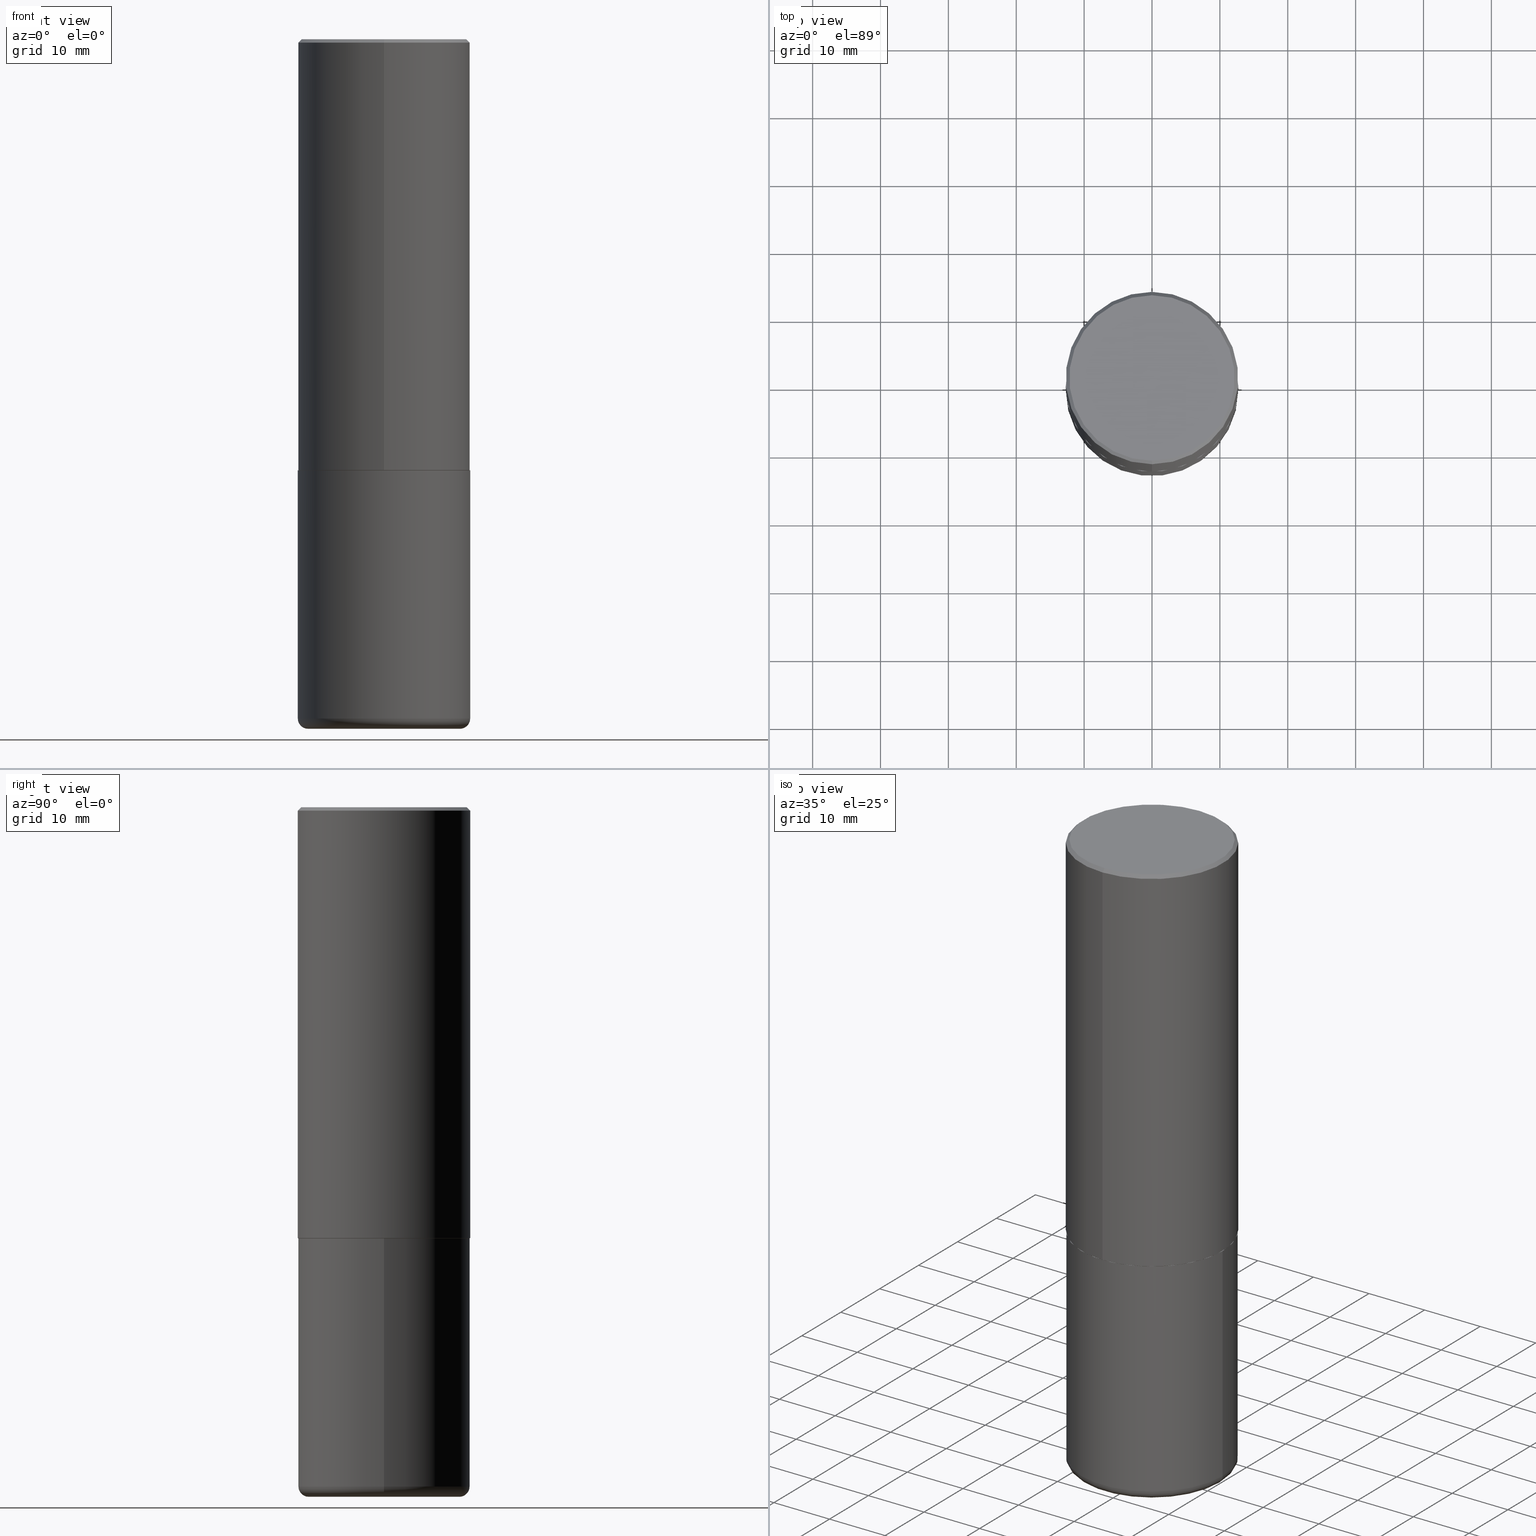
[diagram: canonical four-view strip — front | top / right | iso, engineering-drawing reading convention]
A machine part, canonical four-view strip (front | top / right | iso — engineering-drawing reading convention). The complete STEP part file that produces these views, byte-faithful:
ISO-10303-21;
HEADER;
FILE_DESCRIPTION (( 'STEP AP203' ),
    '1' );
FILE_NAME ('37220.STEP',
    '2024-03-01T22:10:00',
    ( '' ),
    ( '' ),
    'SwSTEP 2.0',
    'SolidWorks 2023',
    '' );
FILE_SCHEMA (( 'CONFIG_CONTROL_DESIGN' ));
ENDSEC;

DATA;
#1 = ORIENTED_EDGE ( 'NONE', *, *, #38, .T. ) ;
#2 = CONICAL_SURFACE ( 'NONE', #337, 0.5000000000000000000, 0.7853981633974449483 ) ;
#3 = ORIENTED_EDGE ( 'NONE', *, *, #324, .T. ) ;
#4 = AXIS2_PLACEMENT_3D ( 'NONE', #144, #272, #202 ) ;
#5 = ORIENTED_EDGE ( 'NONE', *, *, #242, .F. ) ;
#6 = EDGE_CURVE ( 'NONE', #294, #332, #207, .T. ) ;
#7 = ORIENTED_EDGE ( 'NONE', *, *, #141, .F. ) ;
#8 = ADVANCED_FACE ( 'NONE', ( #15 ), #296, .F. ) ;
#9 = AXIS2_PLACEMENT_3D ( 'NONE', #307, #410, #23 ) ;
#10 = CARTESIAN_POINT ( 'NONE',  ( 0.000000000000000000, 0.000000000000000000, 0.000000000000000000 ) ) ;
#11 = ADVANCED_FACE ( 'NONE', ( #204 ), #181, .T. ) ;
#12 = CARTESIAN_POINT ( 'NONE',  ( 0.000000000000000000, 0.000000000000000000, 0.000000000000000000 ) ) ;
#13 = CIRCLE ( 'NONE', #357, 0.5000000000000002220 ) ;
#14 = DIRECTION ( 'NONE',  ( -6.982962677686265922E-15, -1.000000000000000000, 3.492229786509738161E-15 ) ) ;
#15 = FACE_OUTER_BOUND ( 'NONE', #321, .T. ) ;
#16 = CARTESIAN_POINT ( 'NONE',  ( -5.540013713897219376E-45, 7.913058030796886371E-31, 2.265904168552862416E-16 ) ) ;
#17 = DIRECTION ( 'NONE',  ( 1.000000000000000000, -6.982962677686268288E-15, 4.883557194083113462E-29 ) ) ;
#18 = CC_DESIGN_SECURITY_CLASSIFICATION ( #297, ( #195 ) ) ;
#19 = EDGE_CURVE ( 'NONE', #360, #102, #182, .T. ) ;
#20 = AXIS2_PLACEMENT_3D ( 'NONE', #266, #238, #41 ) ;
#21 = CARTESIAN_POINT ( 'NONE',  ( -3.484498376165385415E-15, -0.4990000000000087144, -2.499999999999998668 ) ) ;
#22 = FACE_OUTER_BOUND ( 'NONE', #198, .T. ) ;
#23 = DIRECTION ( 'NONE',  ( 1.000000000000000000, -6.982962677686266711E-15, 0.000000000000000000 ) ) ;
#24 = LINE ( 'NONE', #312, #333 ) ;
#25 = DIRECTION ( 'NONE',  ( -1.000000000000000000, 6.982962677686265922E-15, -4.876176775795935793E-29 ) ) ;
#26 = APPROVAL_STATUS ( 'not_yet_approved' ) ;
#27 = ORIENTED_EDGE ( 'NONE', *, *, #60, .T. ) ;
#28 = DIMENSIONAL_EXPONENTS ( 1.000000000000000000, 0.000000000000000000, 0.000000000000000000, 0.000000000000000000, 0.000000000000000000, 0.000000000000000000, 0.000000000000000000 ) ;
#29 = CALENDAR_DATE ( 2024, 1, 3 ) ;
#30 = SHAPE_DEFINITION_REPRESENTATION ( #310, #227 ) ;
#31 = CC_DESIGN_PERSON_AND_ORGANIZATION_ASSIGNMENT ( #353, #359, ( #319 ) ) ;
#32 = APPROVAL_PERSON_ORGANIZATION ( #193, #50, #322 ) ;
#33 = EDGE_LOOP ( 'NONE', ( #165, #69, #415, #327 ) ) ;
#34 = AXIS2_PLACEMENT_3D ( 'NONE', #399, #234, #17 ) ;
#35 = ORIENTED_EDGE ( 'NONE', *, *, #19, .F. ) ;
#36 = ORIENTED_EDGE ( 'NONE', *, *, #286, .F. ) ;
#37 = AXIS2_PLACEMENT_3D ( 'NONE', #375, #300, #341 ) ;
#38 = EDGE_CURVE ( 'NONE', #162, #201, #95, .T. ) ;
#39 = EDGE_LOOP ( 'NONE', ( #101, #3, #7, #290 ) ) ;
#40 = VERTEX_POINT ( 'NONE', #176 ) ;
#41 = DIRECTION ( 'NONE',  ( 6.982962677686265922E-15, 1.000000000000000000, -3.492229786509738161E-15 ) ) ;
#42 = LINE ( 'NONE', #21, #136 ) ;
#43 = VECTOR ( 'NONE', #143, 39.37007874015748143 ) ;
#44 = DIRECTION ( 'NONE',  ( -2.444946167972934928E-29, 3.492229786509738161E-15, 1.000000000000000000 ) ) ;
#45 = DIRECTION ( 'NONE',  ( 6.982962677686265922E-15, 1.000000000000000000, -3.491643216902136408E-15 ) ) ;
#46 = DIRECTION ( 'NONE',  ( 1.000000000000000000, -6.982962677686266711E-15, 4.876176775795935793E-29 ) ) ;
#47 = DIRECTION ( 'NONE',  ( -6.982962677686265922E-15, -1.000000000000000000, 3.492229786509738161E-15 ) ) ;
#48 = PLANE ( 'NONE',  #20 ) ;
#49 = DIRECTION ( 'NONE',  ( -4.937700262165728178E-15, -0.7071067811867141062, 0.7071067811863809283 ) ) ;
#50 = APPROVAL ( #92, 'UNSPECIFIED' ) ;
#51 = DIRECTION ( 'NONE',  ( -6.982962677686265922E-15, -1.000000000000000000, 3.284787166730577015E-15 ) ) ;
#52 = DIRECTION ( 'NONE',  ( -2.445468806185136597E-29, 3.491481338843145583E-15, 1.000000000000000000 ) ) ;
#53 = DIRECTION ( 'NONE',  ( -1.000000000000000000, 6.982962677686265922E-15, -4.876176775795935793E-29 ) ) ;
#54 = DATE_TIME_ROLE ( 'classification_date' ) ;
#55 = CARTESIAN_POINT ( 'NONE',  ( 3.491481338843133355E-15, 0.4999999999999999445, -0.02000000000000185310 ) ) ;
#56 = PERSON_AND_ORGANIZATION ( #127, #279 ) ;
#57 = CC_DESIGN_APPROVAL ( #50, ( #124 ) ) ;
#58 = COORDINATED_UNIVERSAL_TIME_OFFSET ( 5, 0, .BEHIND. ) ;
#59 = APPROVAL_ROLE ( '' ) ;
#60 = EDGE_CURVE ( 'NONE', #231, #166, #145, .T. ) ;
#61 = DIRECTION ( 'NONE',  ( 0.000000000000000000, 0.000000000000000000, 1.000000000000000000 ) ) ;
#62 = ADVANCED_FACE ( 'NONE', ( #22 ), #48, .F. ) ;
#63 = EDGE_LOOP ( 'NONE', ( #27, #192, #168, #323 ) ) ;
#64 = VERTEX_POINT ( 'NONE', #268 ) ;
#65 = CIRCLE ( 'NONE', #66, 0.5000000000000000000 ) ;
#66 = AXIS2_PLACEMENT_3D ( 'NONE', #303, #44, #104 ) ;
#67 = ORIENTED_EDGE ( 'NONE', *, *, #6, .F. ) ;
#68 = EDGE_CURVE ( 'NONE', #261, #64, #148, .T. ) ;
#69 = ORIENTED_EDGE ( 'NONE', *, *, #222, .T. ) ;
#70 = AXIS2_PLACEMENT_3D ( 'NONE', #271, #184, #408 ) ;
#71 = ORIENTED_EDGE ( 'NONE', *, *, #80, .T. ) ;
#72 = CARTESIAN_POINT ( 'NONE',  ( 0.5000000000000000000, -1.222018468595099830E-14, -2.500000000000000000 ) ) ;
#73 = DIRECTION ( 'NONE',  ( 2.444946167972934928E-29, -3.492229786509738161E-15, -1.000000000000000000 ) ) ;
#74 = CARTESIAN_POINT ( 'NONE',  ( 3.552713678800533273E-15, 0.4999999999999916178, -2.499000000000001886 ) ) ;
#75 = DIRECTION ( 'NONE',  ( 2.444946167972934928E-29, -3.492229786509738161E-15, -1.000000000000000000 ) ) ;
#76 = APPROVAL_PERSON_ORGANIZATION ( #218, #340, #59 ) ;
#77 = DIRECTION ( 'NONE',  ( -2.444946167972934928E-29, 3.492229786509738161E-15, 1.000000000000000000 ) ) ;
#78 = DIRECTION ( 'NONE',  ( -2.444946167972934928E-29, 3.492229786509738161E-15, 1.000000000000000000 ) ) ;
#79 = DIRECTION ( 'NONE',  ( -4.851104656540947709E-15, -0.7071067811865475727, -0.7071067811865474617 ) ) ;
#80 = EDGE_CURVE ( 'NONE', #228, #64, #347, .T. ) ;
#81 = CARTESIAN_POINT ( 'NONE',  ( 0.5000000000000000000, -3.491481338843133355E-15, 2.438088387897967896E-29 ) ) ;
#82 = CARTESIAN_POINT ( 'NONE',  ( 3.549160965121762351E-15, 0.4989999999999912283, -2.500000000000001776 ) ) ;
#83 = FACE_OUTER_BOUND ( 'NONE', #123, .T. ) ;
#84 = EDGE_CURVE ( 'NONE', #201, #162, #398, .T. ) ;
#85 = DIRECTION ( 'NONE',  ( -2.445468806185136597E-29, 3.491481338843145583E-15, 1.000000000000000000 ) ) ;
#86 = CIRCLE ( 'NONE', #239, 0.4799999999999998157 ) ;
#87 = AXIS2_PLACEMENT_3D ( 'NONE', #177, #344, #299 ) ;
#88 = DATE_AND_TIME ( #29, #160 ) ;
#89 = CARTESIAN_POINT ( 'NONE',  ( 6.113672015462842613E-29, -8.728703347107864943E-15, -2.500000000000000000 ) ) ;
#90 = EDGE_CURVE ( 'NONE', #64, #228, #65, .T. ) ;
#91 = VECTOR ( 'NONE', #351, 39.37007874015748143 ) ;
#92 = APPROVAL_STATUS ( 'not_yet_approved' ) ;
#93 = DIRECTION ( 'NONE',  ( -6.982962677686266711E-15, -1.000000000000000000, 3.491481338843145583E-15 ) ) ;
#94 = LOCAL_TIME ( 17, 10, 0.000000000000000000, #283 ) ;
#95 = CIRCLE ( 'NONE', #330, 0.4989999999999999991 ) ;
#96 = DIRECTION ( 'NONE',  ( 1.000000000000000000, 0.000000000000000000, 0.000000000000000000 ) ) ;
#97 = AXIS2_PLACEMENT_3D ( 'NONE', #383, #93, #348 ) ;
#98 = ADVANCED_FACE ( 'NONE', ( #403 ), #325, .T. ) ;
#99 = ORIENTED_EDGE ( 'NONE', *, *, #250, .F. ) ;
#100 = EDGE_LOOP ( 'NONE', ( #260, #354, #155, #67 ) ) ;
#101 = ORIENTED_EDGE ( 'NONE', *, *, #250, .T. ) ;
#102 = VERTEX_POINT ( 'NONE', #72 ) ;
#103 = ORIENTED_EDGE ( 'NONE', *, *, #365, .F. ) ;
#104 = DIRECTION ( 'NONE',  ( -6.982962677686265922E-15, -1.000000000000000000, 3.491643216902136408E-15 ) ) ;
#105 = CARTESIAN_POINT ( 'NONE',  ( 6.109920473764365540E-29, -8.727082236487837614E-15, -2.499000000000000110 ) ) ;
#106 = MANIFOLD_SOLID_BREP ( 'Body-Move/Copy2[2]', #217 ) ;
#107 = LENGTH_MEASURE_WITH_UNIT ( LENGTH_MEASURE( 0.02539999999999999897 ), #400 );
#108 = DIRECTION ( 'NONE',  ( 1.000000000000000000, -6.982962677686269077E-15, 0.000000000000000000 ) ) ;
#109 = CARTESIAN_POINT ( 'NONE',  ( -3.361644018908049661E-15, -0.4799999999999998157, 1.902860714379959855E-15 ) ) ;
#110 = LOCAL_TIME ( 17, 10, 0.000000000000000000, #355 ) ;
#111 = CARTESIAN_POINT ( 'NONE',  ( 6.113672015462842613E-29, -8.728703347107864943E-15, -2.500000000000000000 ) ) ;
#112 = APPROVAL ( #26, 'UNSPECIFIED' ) ;
#113 = CARTESIAN_POINT ( 'NONE',  ( 0.5000000000000001110, -1.724791781388512737E-14, -3.939999999999999947 ) ) ;
#114 = FACE_OUTER_BOUND ( 'NONE', #258, .T. ) ;
#115 = MANIFOLD_SOLID_BREP ( 'Body-Move/Copy2[1]', #392 ) ;
#116 = DIRECTION ( 'NONE',  ( 7.105427357601001859E-15, 1.000000000000000000, -3.491481338843145583E-15 ) ) ;
#117 = CARTESIAN_POINT ( 'NONE',  ( 6.313440210036972125E-29, -1.893292170748942541E-14, -4.000000000000000000 ) ) ;
#118 = DATE_TIME_ROLE ( 'creation_date' ) ;
#119 = FACE_OUTER_BOUND ( 'NONE', #316, .T. ) ;
#120 = AXIS2_PLACEMENT_3D ( 'NONE', #12, #146, #47 ) ;
#121 = DIRECTION ( 'NONE',  ( 4.937700262164530687E-15, 0.7071067811865426878, -0.7071067811865523467 ) ) ;
#122 =( NAMED_UNIT ( * ) PLANE_ANGLE_UNIT ( ) SI_UNIT ( $, .RADIAN. ) );
#123 = EDGE_LOOP ( 'NONE', ( #194, #364, #255, #394 ) ) ;
#124 = PRODUCT_DEFINITION ( 'UNKNOWN', '', #195, #211 ) ;
#125 = PERSON_AND_ORGANIZATION ( #127, #279 ) ;
#126 = AXIS2_PLACEMENT_3D ( 'NONE', #185, #85, #409 ) ;
#127 = PERSON ( 'UNSPECIFIED', 'UNSPECIFIED', 'UNSPECIFIED', ('UNSPECIFIED'), ('UNSPECIFIED'), ('UNSPECIFIED') ) ;
#128 = ORIENTED_EDGE ( 'NONE', *, *, #141, .T. ) ;
#129 = EDGE_LOOP ( 'NONE', ( #132, #134, #363, #71 ) ) ;
#130 = CIRCLE ( 'NONE', #9, 0.4400000000000000022 ) ;
#131 = AXIS2_PLACEMENT_3D ( 'NONE', #10, #139, #46 ) ;
#132 = ORIENTED_EDGE ( 'NONE', *, *, #68, .F. ) ;
#133 = EDGE_LOOP ( 'NONE', ( #233, #164 ) ) ;
#134 = ORIENTED_EDGE ( 'NONE', *, *, #320, .F. ) ;
#135 = EDGE_CURVE ( 'NONE', #294, #360, #208, .T. ) ;
#136 = VECTOR ( 'NONE', #49, 39.37007874015748143 ) ;
#137 = CARTESIAN_POINT ( 'NONE',  ( 6.109920473764365540E-29, -8.727082236487837614E-15, -2.499000000000000110 ) ) ;
#138 = AXIS2_PLACEMENT_3D ( 'NONE', #277, #246, #298 ) ;
#139 = DIRECTION ( 'NONE',  ( -2.445468806185136597E-29, 3.491481338843145583E-15, 1.000000000000000000 ) ) ;
#140 = FACE_OUTER_BOUND ( 'NONE', #63, .T. ) ;
#141 = EDGE_CURVE ( 'NONE', #332, #294, #219, .T. ) ;
#142 = CARTESIAN_POINT ( 'NONE',  ( 9.635147096369438236E-29, -1.375643647504199401E-14, -3.939999999999999947 ) ) ;
#143 = DIRECTION ( 'NONE',  ( -2.444946167972934928E-29, 3.492229786509738161E-15, 1.000000000000000000 ) ) ;
#144 = CARTESIAN_POINT ( 'NONE',  ( 9.635147096369438236E-29, -1.375643647504199401E-14, -3.939999999999999947 ) ) ;
#145 = CIRCLE ( 'NONE', #388, 0.5000000000000002220 ) ;
#146 = DIRECTION ( 'NONE',  ( -2.444946167972934928E-29, 3.492229786509738161E-15, 1.000000000000000000 ) ) ;
#147 = TOROIDAL_SURFACE ( 'NONE', #126, 0.4400000000000000022, 0.06000000000000017819 ) ;
#148 = LINE ( 'NONE', #367, #285 ) ;
#149 = CC_DESIGN_PERSON_AND_ORGANIZATION_ASSIGNMENT ( #56, #156, ( #297 ) ) ;
#150 = CARTESIAN_POINT ( 'NONE',  ( 3.421651712066270057E-15, 0.4799999999999998157, -1.449679880669387470E-15 ) ) ;
#151 = DIRECTION ( 'NONE',  ( 2.438088387897960049E-29, -3.491481338843145188E-15, -1.000000000000000000 ) ) ;
#152 = DATE_AND_TIME ( #287, #94 ) ;
#153 = LINE ( 'NONE', #281, #91 ) ;
#154 = APPROVAL_ROLE ( '' ) ;
#155 = ORIENTED_EDGE ( 'NONE', *, *, #200, .T. ) ;
#156 = PERSON_AND_ORGANIZATION_ROLE ( 'classification_officer' ) ;
#157 = ADVANCED_FACE ( 'NONE', ( #114 ), #334, .T. ) ;
#158 = APPLICATION_CONTEXT ( 'configuration controlled 3d designs of mechanical parts and assemblies' ) ;
#159 = PERSON_AND_ORGANIZATION_ROLE ( 'creator' ) ;
#160 = LOCAL_TIME ( 17, 10, 0.000000000000000000, #248 ) ;
#161 = APPLICATION_PROTOCOL_DEFINITION ( 'international standard', 'config_control_design', 1994, #158 ) ;
#162 = VERTEX_POINT ( 'NONE', #82 ) ;
#163 = EDGE_CURVE ( 'NONE', #166, #231, #13, .T. ) ;
#164 = ORIENTED_EDGE ( 'NONE', *, *, #19, .T. ) ;
#165 = ORIENTED_EDGE ( 'NONE', *, *, #84, .T. ) ;
#166 = VERTEX_POINT ( 'NONE', #74 ) ;
#167 = AXIS2_PLACEMENT_3D ( 'NONE', #117, #151, #25 ) ;
#168 = ORIENTED_EDGE ( 'NONE', *, *, #90, .F. ) ;
#169 = CC_DESIGN_DATE_AND_TIME_ASSIGNMENT ( #350, #54, ( #297 ) ) ;
#170 = DIRECTION ( 'NONE',  ( 1.000000000000000000, -6.982962677686267499E-15, 0.000000000000000000 ) ) ;
#171 = ADVANCED_FACE ( 'NONE', ( #385 ), #147, .T. ) ;
#172 = CONICAL_SURFACE ( 'NONE', #404, 0.4989999999999999991, 0.7853981633976873100 ) ;
#173 = DIRECTION ( 'NONE',  ( -6.982962677686265922E-15, -1.000000000000000000, 3.284787166730577015E-15 ) ) ;
#174 = CARTESIAN_POINT ( 'NONE',  ( 4.889892335945895815E-31, -6.984459573019513448E-17, -0.02000000000000010797 ) ) ;
#175 = CARTESIAN_POINT ( 'NONE',  ( -0.5000000000000001110, -1.020372279624149466E-14, -3.939999999999999947 ) ) ;
#176 = CARTESIAN_POINT ( 'NONE',  ( -0.4400000000000000022, -1.052163005713481985E-14, -4.000000000000000888 ) ) ;
#177 = CARTESIAN_POINT ( 'NONE',  ( 6.112365419932337880E-29, -8.730574466274345798E-15, -2.500000000000000000 ) ) ;
#178 = FACE_OUTER_BOUND ( 'NONE', #33, .T. ) ;
#179 = APPLICATION_CONTEXT ( 'configuration controlled 3d designs of mechanical parts and assemblies' ) ;
#180 = AXIS2_PLACEMENT_3D ( 'NONE', #302, #346, #14 ) ;
#181 = CYLINDRICAL_SURFACE ( 'NONE', #131, 0.5000000000000000000 ) ;
#182 = CIRCLE ( 'NONE', #374, 0.5000000000000000000 ) ;
#183 = ADVANCED_FACE ( 'NONE', ( #119 ), #275, .T. ) ;
#184 = DIRECTION ( 'NONE',  ( -2.444946167972934928E-29, 3.492229786509738161E-15, 1.000000000000000000 ) ) ;
#185 = CARTESIAN_POINT ( 'NONE',  ( 9.635147096369438236E-29, -1.375643647504199401E-14, -3.939999999999999947 ) ) ;
#186 = DATE_AND_TIME ( #278, #110 ) ;
#187 = LINE ( 'NONE', #381, #226 ) ;
#188 = SECURITY_CLASSIFICATION_LEVEL ( 'unclassified' ) ;
#189 = CALENDAR_DATE ( 2024, 1, 3 ) ;
#190 = CC_DESIGN_PERSON_AND_ORGANIZATION_ASSIGNMENT ( #352, #159, ( #195 ) ) ;
#191 = CALENDAR_DATE ( 2024, 1, 3 ) ;
#192 = ORIENTED_EDGE ( 'NONE', *, *, #280, .T. ) ;
#193 = PERSON_AND_ORGANIZATION ( #127, #279 ) ;
#194 = ORIENTED_EDGE ( 'NONE', *, *, #280, .F. ) ;
#195 = PRODUCT_DEFINITION_FORMATION_WITH_SPECIFIED_SOURCE ( 'ANY', '', #319, .NOT_KNOWN. ) ;
#196 = EDGE_LOOP ( 'NONE', ( #103, #329, #289, #5 ) ) ;
#197 = ORIENTED_EDGE ( 'NONE', *, *, #6, .T. ) ;
#198 = EDGE_LOOP ( 'NONE', ( #371, #418 ) ) ;
#199 = AXIS2_PLACEMENT_3D ( 'NONE', #142, #213, #170 ) ;
#200 = EDGE_CURVE ( 'NONE', #229, #332, #407, .T. ) ;
#201 = VERTEX_POINT ( 'NONE', #247 ) ;
#202 = DIRECTION ( 'NONE',  ( 1.000000000000000000, -6.982962677686267499E-15, 0.000000000000000000 ) ) ;
#203 = DIRECTION ( 'NONE',  ( 6.982962677686265922E-15, 1.000000000000000000, -3.491643216902136408E-15 ) ) ;
#204 = FACE_OUTER_BOUND ( 'NONE', #230, .T. ) ;
#205 = CONICAL_SURFACE ( 'NONE', #345, 0.5000000000000000000, 0.7853981633974449483 ) ;
#206 = CYLINDRICAL_SURFACE ( 'NONE', #120, 0.5000000000000001110 ) ;
#207 = CIRCLE ( 'NONE', #199, 0.4999999999999999445 ) ;
#208 = LINE ( 'NONE', #401, #274 ) ;
#209 = FACE_OUTER_BOUND ( 'NONE', #395, .T. ) ;
#210 = DIRECTION ( 'NONE',  ( -2.444946167972934928E-29, 3.492229786509738161E-15, 1.000000000000000000 ) ) ;
#211 = DESIGN_CONTEXT ( 'detailed design', #179, 'design' ) ;
#212 = CARTESIAN_POINT ( 'NONE',  ( 6.113672015462842613E-29, -8.728703347107864943E-15, -2.500000000000000000 ) ) ;
#213 = DIRECTION ( 'NONE',  ( -2.445468806185136597E-29, 3.491481338843145583E-15, 1.000000000000000000 ) ) ;
#214 = DIRECTION ( 'NONE',  ( -2.444946167972934928E-29, 3.492229786509738161E-15, 1.000000000000000000 ) ) ;
#215 = ADVANCED_FACE ( 'NONE', ( #253 ), #251, .F. ) ;
#216 = CARTESIAN_POINT ( 'NONE',  ( 0.4400000000000000022, -1.703842893355454063E-14, -4.000000000000000888 ) ) ;
#217 = CLOSED_SHELL ( 'NONE', ( #295, #390, #356, #349, #273, #309, #8, #62 ) ) ;
#218 = PERSON_AND_ORGANIZATION ( #127, #279 ) ;
#219 = CIRCLE ( 'NONE', #4, 0.4999999999999999445 ) ;
#220 = DIRECTION ( 'NONE',  ( 2.438088387897960049E-29, -3.491481338843145188E-15, -1.000000000000000000 ) ) ;
#221 = APPROVAL_STATUS ( 'not_yet_approved' ) ;
#222 = EDGE_CURVE ( 'NONE', #162, #166, #153, .T. ) ;
#223 = PERSON_AND_ORGANIZATION_ROLE ( 'design_supplier' ) ;
#224 = CC_DESIGN_APPROVAL ( #340, ( #195 ) ) ;
#225 = MECHANICAL_CONTEXT ( 'NONE', #158, 'mechanical' ) ;
#226 = VECTOR ( 'NONE', #308, 39.37007874015748143 ) ;
#227 = ADVANCED_BREP_SHAPE_REPRESENTATION ( '37220', ( #115, #106, #291 ), #411 ) ;
#228 = VERTEX_POINT ( 'NONE', #55 ) ;
#229 = VERTEX_POINT ( 'NONE', #216 ) ;
#230 = EDGE_LOOP ( 'NONE', ( #362, #197, #386, #35 ) ) ;
#231 = VERTEX_POINT ( 'NONE', #412 ) ;
#232 = EDGE_CURVE ( 'NONE', #231, #64, #187, .T. ) ;
#233 = ORIENTED_EDGE ( 'NONE', *, *, #286, .T. ) ;
#234 = DIRECTION ( 'NONE',  ( -2.445468806185136597E-29, 3.491481338843145583E-15, 1.000000000000000000 ) ) ;
#235 = FACE_OUTER_BOUND ( 'NONE', #129, .T. ) ;
#236 = DIRECTION ( 'NONE',  ( -2.444946167972934928E-29, 3.492229786509738161E-15, 1.000000000000000000 ) ) ;
#237 =( CONVERSION_BASED_UNIT ( 'INCH', #107 ) LENGTH_UNIT ( ) NAMED_UNIT ( #28 ) );
#238 = DIRECTION ( 'NONE',  ( 2.444946167972934647E-29, -3.492229786509738161E-15, -1.000000000000000000 ) ) ;
#239 = AXIS2_PLACEMENT_3D ( 'NONE', #16, #78, #343 ) ;
#240 = DIRECTION ( 'NONE',  ( 1.000000000000000000, -6.982962677686269077E-15, 0.000000000000000000 ) ) ;
#241 = DIRECTION ( 'NONE',  ( -2.444946167972934647E-29, 3.492229786509738161E-15, 1.000000000000000000 ) ) ;
#242 = EDGE_CURVE ( 'NONE', #326, #228, #24, .T. ) ;
#243 = CYLINDRICAL_SURFACE ( 'NONE', #180, 0.5000000000000001110 ) ;
#244 = CARTESIAN_POINT ( 'NONE',  ( 0.000000000000000000, 0.000000000000000000, 0.000000000000000000 ) ) ;
#245 = CC_DESIGN_DATE_AND_TIME_ASSIGNMENT ( #186, #118, ( #124 ) ) ;
#246 = DIRECTION ( 'NONE',  ( -2.445468806185136597E-29, 3.491481338843145583E-15, 1.000000000000000000 ) ) ;
#247 = CARTESIAN_POINT ( 'NONE',  ( -3.484498376165385415E-15, -0.4990000000000087144, -2.499999999999998668 ) ) ;
#248 = COORDINATED_UNIVERSAL_TIME_OFFSET ( 5, 0, .BEHIND. ) ;
#249 = AXIS2_PLACEMENT_3D ( 'NONE', #370, #116, #405 ) ;
#250 = EDGE_CURVE ( 'NONE', #229, #40, #306, .T. ) ;
#251 = PLANE ( 'NONE',  #265 ) ;
#252 = APPLICATION_PROTOCOL_DEFINITION ( 'international standard', 'config_control_design', 1994, #179 ) ;
#253 = FACE_OUTER_BOUND ( 'NONE', #133, .T. ) ;
#254 = EDGE_CURVE ( 'NONE', #332, #102, #379, .T. ) ;
#255 = ORIENTED_EDGE ( 'NONE', *, *, #232, .T. ) ;
#256 = AXIS2_PLACEMENT_3D ( 'NONE', #174, #210, #342 ) ;
#257 = APPROVAL_DATE_TIME ( #416, #112 ) ;
#258 = EDGE_LOOP ( 'NONE', ( #128, #358, #36, #292 ) ) ;
#259 = ORIENTED_EDGE ( 'NONE', *, *, #318, .F. ) ;
#260 = ORIENTED_EDGE ( 'NONE', *, *, #324, .F. ) ;
#261 = VERTEX_POINT ( 'NONE', #109 ) ;
#262 = ORIENTED_EDGE ( 'NONE', *, *, #38, .F. ) ;
#263 = CONICAL_SURFACE ( 'NONE', #70, 0.4989999999999999991, 0.7853981633976873100 ) ;
#264 = DIRECTION ( 'NONE',  ( 1.000000000000000000, -6.982962677686266711E-15, 4.876176775795935793E-29 ) ) ;
#265 = AXIS2_PLACEMENT_3D ( 'NONE', #89, #220, #53 ) ;
#266 = CARTESIAN_POINT ( 'NONE',  ( 3.351822085289406364E-15, 0.4799999999999998157, -1.562975089097030468E-15 ) ) ;
#267 = CARTESIAN_POINT ( 'NONE',  ( 3.552713678800501718E-15, 0.5000000000000001110, -1.746114893254869475E-15 ) ) ;
#268 = CARTESIAN_POINT ( 'NONE',  ( -3.430248998885764992E-15, -0.5000000000000001110, -0.01999999999999835937 ) ) ;
#269 = AXIS2_PLACEMENT_3D ( 'NONE', #212, #52, #240 ) ;
#270 = CIRCLE ( 'NONE', #269, 0.5000000000000000000 ) ;
#271 = CARTESIAN_POINT ( 'NONE',  ( 6.112365419932337880E-29, -8.730574466274345798E-15, -2.500000000000000000 ) ) ;
#272 = DIRECTION ( 'NONE',  ( -2.445468806185136597E-29, 3.491481338843145583E-15, 1.000000000000000000 ) ) ;
#273 = ADVANCED_FACE ( 'NONE', ( #83 ), #243, .T. ) ;
#274 = VECTOR ( 'NONE', #339, 39.37007874015748143 ) ;
#275 = PLANE ( 'NONE',  #167 ) ;
#276 = DIRECTION ( 'NONE',  ( -2.445468806185136877E-29, 3.491481338843145188E-15, 1.000000000000000000 ) ) ;
#277 = CARTESIAN_POINT ( 'NONE',  ( 9.781875224740547508E-29, -1.396592535537258391E-14, -4.000000000000000888 ) ) ;
#278 = CALENDAR_DATE ( 2024, 1, 3 ) ;
#279 = ORGANIZATION ( 'UNSPECIFIED', 'UNSPECIFIED', '' ) ;
#280 = EDGE_CURVE ( 'NONE', #166, #228, #377, .T. ) ;
#281 = CARTESIAN_POINT ( 'NONE',  ( 3.545608251442960663E-15, 0.4989999999999912283, -2.500000000000001776 ) ) ;
#282 = APPROVAL_DATE_TIME ( #88, #340 ) ;
#283 = COORDINATED_UNIVERSAL_TIME_OFFSET ( 5, 0, .BEHIND. ) ;
#284 = PERSON_AND_ORGANIZATION ( #127, #279 ) ;
#285 = VECTOR ( 'NONE', #79, 39.37007874015748143 ) ;
#286 = EDGE_CURVE ( 'NONE', #102, #360, #270, .T. ) ;
#287 = CALENDAR_DATE ( 2024, 1, 3 ) ;
#288 = ORIENTED_EDGE ( 'NONE', *, *, #163, .F. ) ;
#289 = ORIENTED_EDGE ( 'NONE', *, *, #90, .T. ) ;
#290 = ORIENTED_EDGE ( 'NONE', *, *, #200, .F. ) ;
#291 = AXIS2_PLACEMENT_3D ( 'NONE', #413, #61, #96 ) ;
#292 = ORIENTED_EDGE ( 'NONE', *, *, #254, .F. ) ;
#293 = AXIS2_PLACEMENT_3D ( 'NONE', #244, #378, #264 ) ;
#294 = VERTEX_POINT ( 'NONE', #175 ) ;
#295 = ADVANCED_FACE ( 'NONE', ( #178 ), #172, .T. ) ;
#296 = PLANE ( 'NONE',  #315 ) ;
#297 = SECURITY_CLASSIFICATION ( '', '', #188 ) ;
#298 = DIRECTION ( 'NONE',  ( 1.000000000000000000, -6.982962677686266711E-15, 0.000000000000000000 ) ) ;
#299 = DIRECTION ( 'NONE',  ( -6.982962677686265922E-15, -1.000000000000000000, 3.284787166730577015E-15 ) ) ;
#300 = DIRECTION ( 'NONE',  ( -2.444946167972934928E-29, 3.492229786509738161E-15, 1.000000000000000000 ) ) ;
#301 = CARTESIAN_POINT ( 'NONE',  ( 6.112365419932337880E-29, -8.730574466274345798E-15, -2.500000000000000000 ) ) ;
#302 = CARTESIAN_POINT ( 'NONE',  ( 0.000000000000000000, 0.000000000000000000, 0.000000000000000000 ) ) ;
#303 = CARTESIAN_POINT ( 'NONE',  ( 4.889892335945895815E-31, -6.984459573019513448E-17, -0.02000000000000010797 ) ) ;
#304 = FACE_OUTER_BOUND ( 'NONE', #196, .T. ) ;
#305 = CARTESIAN_POINT ( 'NONE',  ( 6.112365419932337880E-29, -8.730574466274345798E-15, -2.500000000000000000 ) ) ;
#306 = CIRCLE ( 'NONE', #138, 0.4400000000000000022 ) ;
#307 = CARTESIAN_POINT ( 'NONE',  ( 9.781875224740547508E-29, -1.396592535537258391E-14, -4.000000000000000888 ) ) ;
#308 = DIRECTION ( 'NONE',  ( -2.444946167972934928E-29, 3.492229786509738161E-15, 1.000000000000000000 ) ) ;
#309 = ADVANCED_FACE ( 'NONE', ( #209 ), #263, .T. ) ;
#310 = PRODUCT_DEFINITION_SHAPE ( 'NONE', 'NONE',  #124 ) ;
#311 = APPROVAL_DATE_TIME ( #152, #50 ) ;
#312 = CARTESIAN_POINT ( 'NONE',  ( 3.491481338843133355E-15, 0.4999999999999999445, -0.02000000000000185310 ) ) ;
#313 = PERSON_AND_ORGANIZATION ( #127, #279 ) ;
#314 = LOCAL_TIME ( 17, 10, 0.000000000000000000, #58 ) ;
#315 = AXIS2_PLACEMENT_3D ( 'NONE', #305, #241, #376 ) ;
#316 = EDGE_LOOP ( 'NONE', ( #99, #259 ) ) ;
#317 = PERSON_AND_ORGANIZATION_ROLE ( 'creator' ) ;
#318 = EDGE_CURVE ( 'NONE', #40, #229, #130, .T. ) ;
#319 = PRODUCT ( '37220', '37220', '', ( #225 ) ) ;
#320 = EDGE_CURVE ( 'NONE', #326, #261, #86, .T. ) ;
#321 = EDGE_LOOP ( 'NONE', ( #393, #262 ) ) ;
#322 = APPROVAL_ROLE ( '' ) ;
#323 = ORIENTED_EDGE ( 'NONE', *, *, #232, .F. ) ;
#324 = EDGE_CURVE ( 'NONE', #40, #294, #372, .T. ) ;
#325 = TOROIDAL_SURFACE ( 'NONE', #34, 0.4400000000000000022, 0.06000000000000017819 ) ;
#326 = VERTEX_POINT ( 'NONE', #150 ) ;
#327 = ORIENTED_EDGE ( 'NONE', *, *, #373, .F. ) ;
#328 = CIRCLE ( 'NONE', #37, 0.4799999999999998157 ) ;
#329 = ORIENTED_EDGE ( 'NONE', *, *, #68, .T. ) ;
#330 = AXIS2_PLACEMENT_3D ( 'NONE', #301, #397, #51 ) ;
#331 = UNCERTAINTY_MEASURE_WITH_UNIT (LENGTH_MEASURE( 1.000000000000000082E-05 ), #237, 'distance_accuracy_value', 'NONE');
#332 = VERTEX_POINT ( 'NONE', #113 ) ;
#333 = VECTOR ( 'NONE', #121, 39.37007874015748143 ) ;
#334 = CYLINDRICAL_SURFACE ( 'NONE', #293, 0.5000000000000000000 ) ;
#335 = CARTESIAN_POINT ( 'NONE',  ( -0.5000000000000000000, -7.689856232274428549E-15, -2.500000000000000000 ) ) ;
#336 = DIRECTION ( 'NONE',  ( -6.982962677686266711E-15, -1.000000000000000000, 3.278217592397114284E-15 ) ) ;
#337 = AXIS2_PLACEMENT_3D ( 'NONE', #368, #73, #45 ) ;
#338 = CARTESIAN_POINT ( 'NONE',  ( 6.112365419932337880E-29, -8.730574466274345798E-15, -2.500000000000000000 ) ) ;
#339 = DIRECTION ( 'NONE',  ( -2.445468806185136877E-29, 3.491481338843145188E-15, 1.000000000000000000 ) ) ;
#340 = APPROVAL ( #221, 'UNSPECIFIED' ) ;
#341 = DIRECTION ( 'NONE',  ( -6.982962677686265922E-15, -1.000000000000000000, 3.492229786509738161E-15 ) ) ;
#342 = DIRECTION ( 'NONE',  ( -6.982962677686265922E-15, -1.000000000000000000, 3.491643216902136408E-15 ) ) ;
#343 = DIRECTION ( 'NONE',  ( -6.982962677686265922E-15, -1.000000000000000000, 3.492229786509738161E-15 ) ) ;
#344 = DIRECTION ( 'NONE',  ( -2.444946167972934928E-29, 3.492229786509738161E-15, 1.000000000000000000 ) ) ;
#345 = AXIS2_PLACEMENT_3D ( 'NONE', #402, #75, #203 ) ;
#346 = DIRECTION ( 'NONE',  ( -2.444946167972934928E-29, 3.492229786509738161E-15, 1.000000000000000000 ) ) ;
#347 = CIRCLE ( 'NONE', #256, 0.5000000000000000000 ) ;
#348 = DIRECTION ( 'NONE',  ( 1.000000000000000000, -6.982962677686279332E-15, 0.000000000000000000 ) ) ;
#349 = ADVANCED_FACE ( 'NONE', ( #235 ), #2, .T. ) ;
#350 = DATE_AND_TIME ( #191, #387 ) ;
#351 = DIRECTION ( 'NONE',  ( 5.024295867789263036E-15, 0.7071067811867189912, 0.7071067811863760433 ) ) ;
#352 = PERSON_AND_ORGANIZATION ( #127, #279 ) ;
#353 = PERSON_AND_ORGANIZATION ( #127, #279 ) ;
#354 = ORIENTED_EDGE ( 'NONE', *, *, #318, .T. ) ;
#355 = COORDINATED_UNIVERSAL_TIME_OFFSET ( 5, 0, .BEHIND. ) ;
#356 = ADVANCED_FACE ( 'NONE', ( #304 ), #205, .T. ) ;
#357 = AXIS2_PLACEMENT_3D ( 'NONE', #105, #236, #369 ) ;
#358 = ORIENTED_EDGE ( 'NONE', *, *, #135, .T. ) ;
#359 = PERSON_AND_ORGANIZATION_ROLE ( 'design_owner' ) ;
#360 = VERTEX_POINT ( 'NONE', #335 ) ;
#361 = APPROVAL_PERSON_ORGANIZATION ( #313, #112, #154 ) ;
#362 = ORIENTED_EDGE ( 'NONE', *, *, #135, .F. ) ;
#363 = ORIENTED_EDGE ( 'NONE', *, *, #242, .T. ) ;
#364 = ORIENTED_EDGE ( 'NONE', *, *, #163, .T. ) ;
#365 = EDGE_CURVE ( 'NONE', #261, #326, #328, .T. ) ;
#366 = ORIENTED_EDGE ( 'NONE', *, *, #373, .T. ) ;
#367 = CARTESIAN_POINT ( 'NONE',  ( -3.430248998885764992E-15, -0.5000000000000001110, -0.01999999999999835937 ) ) ;
#368 = CARTESIAN_POINT ( 'NONE',  ( 4.889892335945895815E-31, -6.984459573019513448E-17, -0.02000000000000010797 ) ) ;
#369 = DIRECTION ( 'NONE',  ( -6.982962677686266711E-15, -1.000000000000000000, 3.278217592397114284E-15 ) ) ;
#370 = CARTESIAN_POINT ( 'NONE',  ( -0.4400000000000000022, -1.063004843769755357E-14, -3.939999999999999947 ) ) ;
#371 = ORIENTED_EDGE ( 'NONE', *, *, #320, .T. ) ;
#372 = CIRCLE ( 'NONE', #249, 0.06000000000000017819 ) ;
#373 = EDGE_CURVE ( 'NONE', #201, #231, #42, .T. ) ;
#374 = AXIS2_PLACEMENT_3D ( 'NONE', #111, #406, #108 ) ;
#375 = CARTESIAN_POINT ( 'NONE',  ( -5.540013713897219376E-45, 7.913058030796886371E-31, 2.265904168552862416E-16 ) ) ;
#376 = DIRECTION ( 'NONE',  ( -6.982962677686265922E-15, -1.000000000000000000, 3.492229786509738161E-15 ) ) ;
#377 = LINE ( 'NONE', #267, #43 ) ;
#378 = DIRECTION ( 'NONE',  ( -2.445468806185136597E-29, 3.491481338843145583E-15, 1.000000000000000000 ) ) ;
#379 = LINE ( 'NONE', #81, #384 ) ;
#380 = CC_DESIGN_PERSON_AND_ORGANIZATION_ASSIGNMENT ( #284, #223, ( #195 ) ) ;
#381 = CARTESIAN_POINT ( 'NONE',  ( -3.491481338843133750E-15, -0.5000000000000001110, 1.746114893254869475E-15 ) ) ;
#382 = COORDINATED_UNIVERSAL_TIME_OFFSET ( 5, 0, .BEHIND. ) ;
#383 = CARTESIAN_POINT ( 'NONE',  ( 0.4400000000000000022, -1.682894005322395074E-14, -3.939999999999999947 ) ) ;
#384 = VECTOR ( 'NONE', #276, 39.37007874015748143 ) ;
#385 = FACE_OUTER_BOUND ( 'NONE', #39, .T. ) ;
#386 = ORIENTED_EDGE ( 'NONE', *, *, #254, .T. ) ;
#387 = LOCAL_TIME ( 17, 10, 0.000000000000000000, #382 ) ;
#388 = AXIS2_PLACEMENT_3D ( 'NONE', #137, #77, #336 ) ;
#389 =( NAMED_UNIT ( * ) SI_UNIT ( $, .STERADIAN. ) SOLID_ANGLE_UNIT ( ) );
#390 = ADVANCED_FACE ( 'NONE', ( #140 ), #206, .T. ) ;
#391 = ORIENTED_EDGE ( 'NONE', *, *, #222, .F. ) ;
#392 = CLOSED_SHELL ( 'NONE', ( #157, #171, #215, #11, #98, #183 ) ) ;
#393 = ORIENTED_EDGE ( 'NONE', *, *, #84, .F. ) ;
#394 = ORIENTED_EDGE ( 'NONE', *, *, #80, .F. ) ;
#395 = EDGE_LOOP ( 'NONE', ( #391, #1, #366, #288 ) ) ;
#396 = PRODUCT_RELATED_PRODUCT_CATEGORY ( 'detail', '', ( #319 ) ) ;
#397 = DIRECTION ( 'NONE',  ( -2.444946167972934928E-29, 3.492229786509738161E-15, 1.000000000000000000 ) ) ;
#398 = CIRCLE ( 'NONE', #87, 0.4989999999999999991 ) ;
#399 = CARTESIAN_POINT ( 'NONE',  ( 9.635147096369438236E-29, -1.375643647504199401E-14, -3.939999999999999947 ) ) ;
#400 =( LENGTH_UNIT ( ) NAMED_UNIT ( * ) SI_UNIT ( $, .METRE. ) );
#401 = CARTESIAN_POINT ( 'NONE',  ( -0.5000000000000000000, 3.552713678800500929E-15, -2.459467545127452891E-29 ) ) ;
#402 = CARTESIAN_POINT ( 'NONE',  ( 4.889892335945895815E-31, -6.984459573019513448E-17, -0.02000000000000010797 ) ) ;
#403 = FACE_OUTER_BOUND ( 'NONE', #100, .T. ) ;
#404 = AXIS2_PLACEMENT_3D ( 'NONE', #338, #214, #173 ) ;
#405 = DIRECTION ( 'NONE',  ( -1.000000000000000000, 7.105427357601001859E-15, 0.000000000000000000 ) ) ;
#406 = DIRECTION ( 'NONE',  ( -2.445468806185136597E-29, 3.491481338843145583E-15, 1.000000000000000000 ) ) ;
#407 = CIRCLE ( 'NONE', #97, 0.06000000000000017819 ) ;
#408 = DIRECTION ( 'NONE',  ( -6.982962677686265922E-15, -1.000000000000000000, 3.284787166730577015E-15 ) ) ;
#409 = DIRECTION ( 'NONE',  ( 1.000000000000000000, -6.982962677686268288E-15, 4.883557194083113462E-29 ) ) ;
#410 = DIRECTION ( 'NONE',  ( -2.445468806185136597E-29, 3.491481338843145583E-15, 1.000000000000000000 ) ) ;
#411 =( GEOMETRIC_REPRESENTATION_CONTEXT ( 3 ) GLOBAL_UNCERTAINTY_ASSIGNED_CONTEXT ( ( #331 ) ) GLOBAL_UNIT_ASSIGNED_CONTEXT ( ( #237, #122, #389 ) ) REPRESENTATION_CONTEXT ( 'NONE', 'WORKASPACE' ) );
#412 = CARTESIAN_POINT ( 'NONE',  ( -3.491481338843073796E-15, -0.5000000000000089928, -2.498999999999998778 ) ) ;
#413 = CARTESIAN_POINT ( 'NONE',  ( 0.000000000000000000, 0.000000000000000000, 0.000000000000000000 ) ) ;
#414 = CC_DESIGN_PERSON_AND_ORGANIZATION_ASSIGNMENT ( #125, #317, ( #124 ) ) ;
#415 = ORIENTED_EDGE ( 'NONE', *, *, #60, .F. ) ;
#416 = DATE_AND_TIME ( #189, #314 ) ;
#417 = CC_DESIGN_APPROVAL ( #112, ( #297 ) ) ;
#418 = ORIENTED_EDGE ( 'NONE', *, *, #365, .T. ) ;
ENDSEC;
END-ISO-10303-21;
